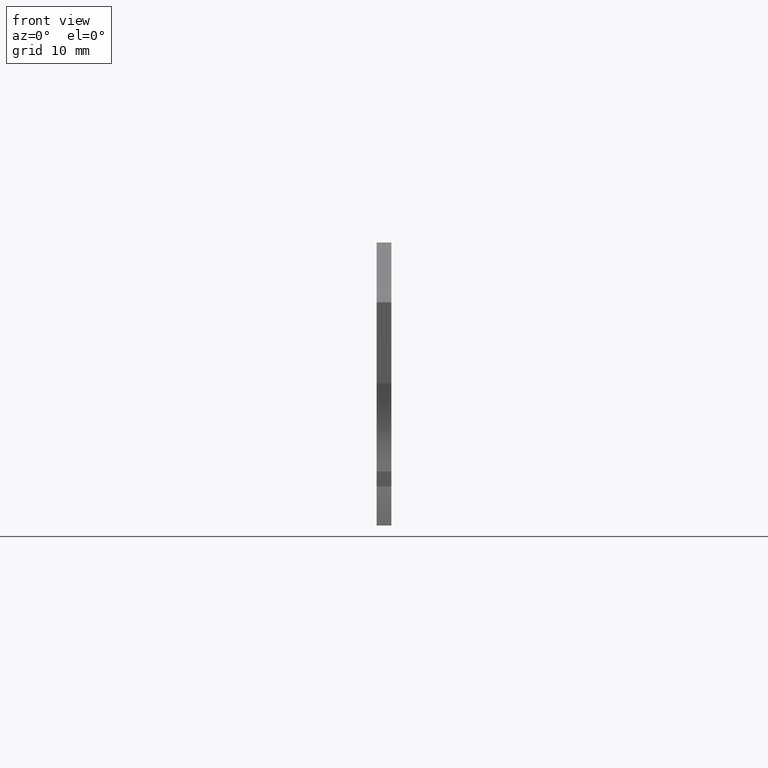
[diagram: clean part render]
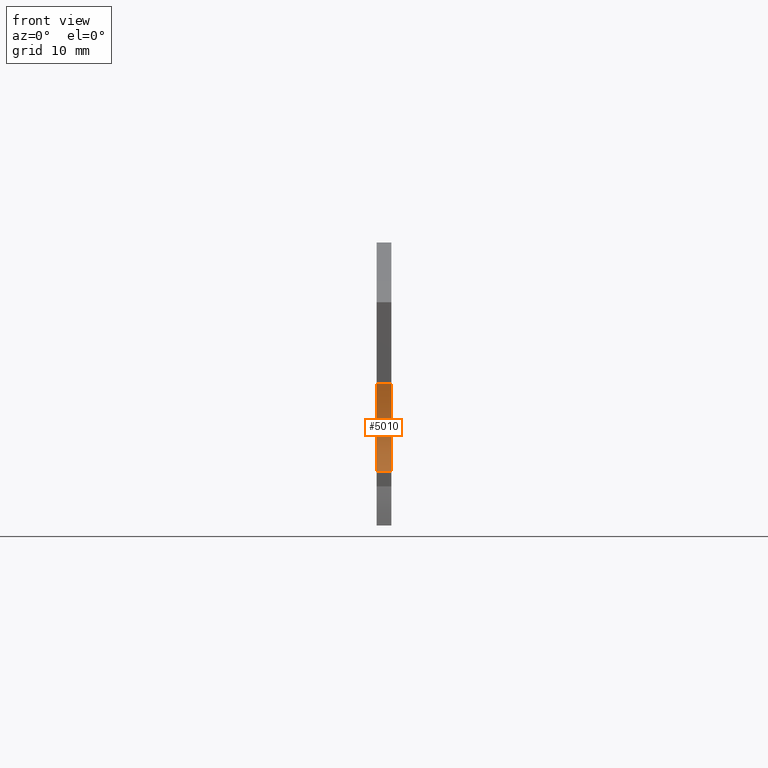
[diagram: same view with one face highlighted and labeled with its STEP entity id]
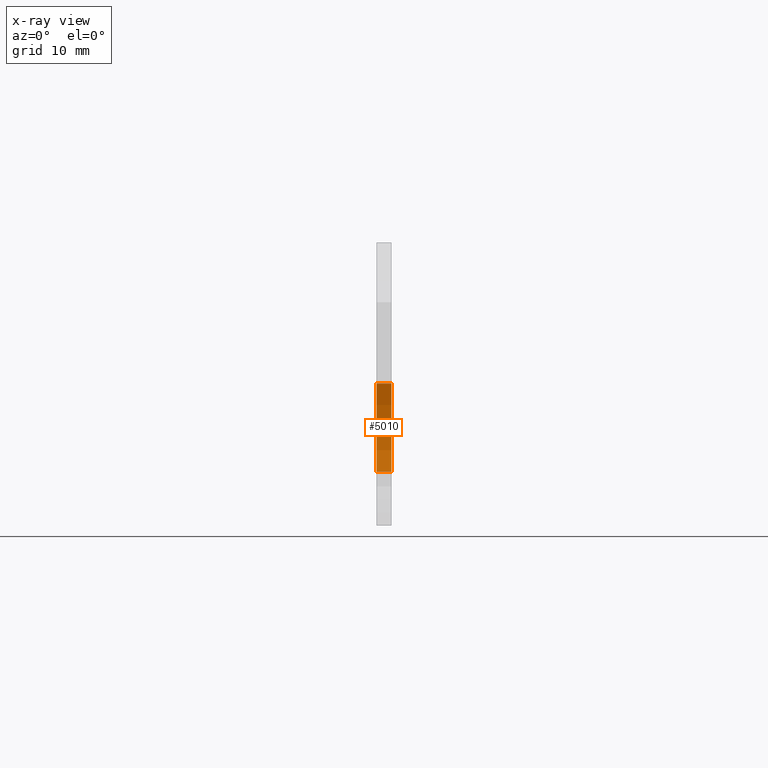
[diagram: x-ray of the same camera — body ghosted, the highlighted face saturated]
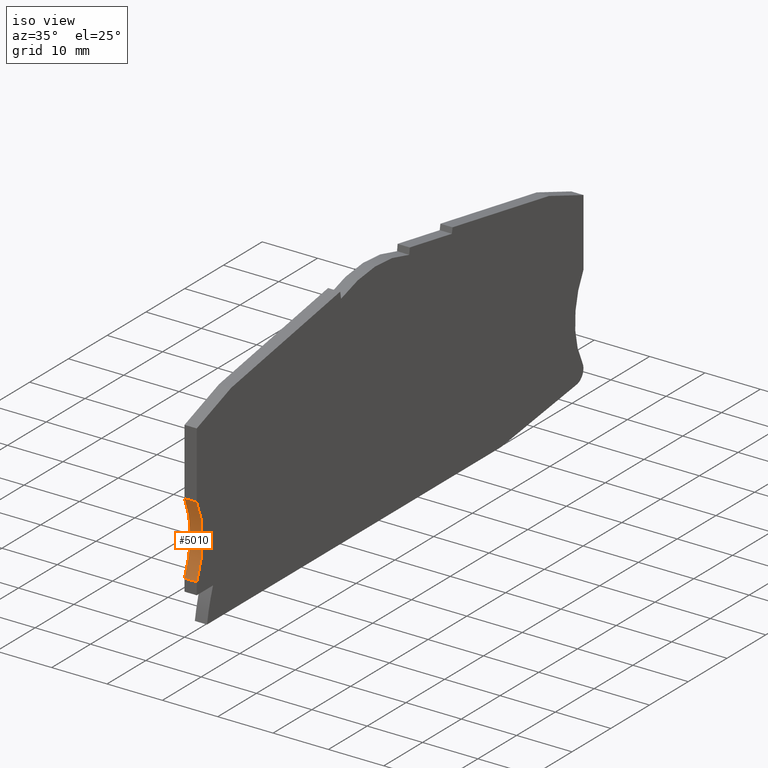
[diagram: same view with one face highlighted and labeled with its STEP entity id]
A machine part, front view. The second image highlights one B-rep face of the part: STEP entity #5010.
The next image is the same camera in x-ray: the body ghosted, the highlighted face saturated — about 0% of this face is hidden behind the body in this view.
A second angle (iso view) of the same face is appended — the face is thin or edge-on in the first view.
In plain terms, the highlighted cylindrical surface (partial cylindrical patch) has radius 15 mm, axis along (1, 0, 0).
Its self-contained STEP definition (entity closure, byte-faithful):
#1410=CARTESIAN_POINT('',(-15.9847188194021,-65.928065328636,
125.749999999978));
#1420=VERTEX_POINT('',#1410);
#1450=CARTESIAN_POINT('',(-29.503224653977,-59.4280653285926,
125.749999999975));
#1460=DIRECTION('',(-6.03432729529515E-13,-7.59071191710367E-13,1.));
#1470=DIRECTION('',(1.,-3.108041601862E-12,6.03432729527156E-13));
#1480=AXIS2_PLACEMENT_3D('',#1450,#1460,#1470);
#1490=CIRCLE('',#1480,15.);
#1500=CARTESIAN_POINT('',(-15.9847188194686,-52.928065328411,
125.749999999988));
#1510=VERTEX_POINT('',#1500);
#1520=EDGE_CURVE('',#1420,#1510,#1490,.T.);
#3320=CARTESIAN_POINT('',(-15.9847188194659,-52.9280653284077,
121.349997599874));
#3330=DIRECTION('',(-6.03432729529515E-13,-7.59071191710367E-13,1.));
#3340=VECTOR('',#3330,1.);
#3350=LINE('',#3320,#3340);
#3360=CARTESIAN_POINT('',(-15.9847188194672,-52.9280653284093,
123.549999999988));
#3370=VERTEX_POINT('',#3360);
#3380=EDGE_CURVE('',#3370,#1510,#3350,.T.);
#4010=CARTESIAN_POINT('',(-29.5032246539757,-59.4280653285909,
123.549999999983));
#4020=DIRECTION('',(-6.03432729529515E-13,-7.59071191710367E-13,1.));
#4030=DIRECTION('',(1.,-3.108041601862E-12,6.03432729527156E-13));
#4040=AXIS2_PLACEMENT_3D('',#4010,#4020,#4030);
#4050=CIRCLE('',#4040,15.);
#4060=CARTESIAN_POINT('',(-15.9847188194008,-65.9280653286343,
123.549999999978));
#4070=VERTEX_POINT('',#4060);
#4080=EDGE_CURVE('',#4070,#3370,#4050,.T.);
#4850=CARTESIAN_POINT('',(-29.5032246539744,-59.4280653285893,
121.349997599861));
#4860=DIRECTION('',(-6.03432729529515E-13,-7.59071191710367E-13,1.));
#4870=DIRECTION('',(1.,-3.108041601862E-12,6.03432729527156E-13));
#4880=AXIS2_PLACEMENT_3D('',#4850,#4860,#4870);
#4890=CYLINDRICAL_SURFACE('',#4880,15.);
#4900=CARTESIAN_POINT('',(-15.9847188193994,-65.9280653286326,
121.349997599864));
#4910=DIRECTION('',(-6.03432729529515E-13,-7.59071191710367E-13,1.));
#4920=VECTOR('',#4910,1.);
#4930=LINE('',#4900,#4920);
#4940=EDGE_CURVE('',#4070,#1420,#4930,.T.);
#4950=ORIENTED_EDGE('',*,*,#4940,.T.);
#4960=ORIENTED_EDGE('',*,*,#4080,.F.);
#4970=ORIENTED_EDGE('',*,*,#3380,.F.);
#4980=ORIENTED_EDGE('',*,*,#1520,.T.);
#4990=EDGE_LOOP('',(#4980,#4970,#4960,#4950));
#5000=FACE_OUTER_BOUND('',#4990,.T.);
#5010=ADVANCED_FACE('',(#5000),#4890,.F.);